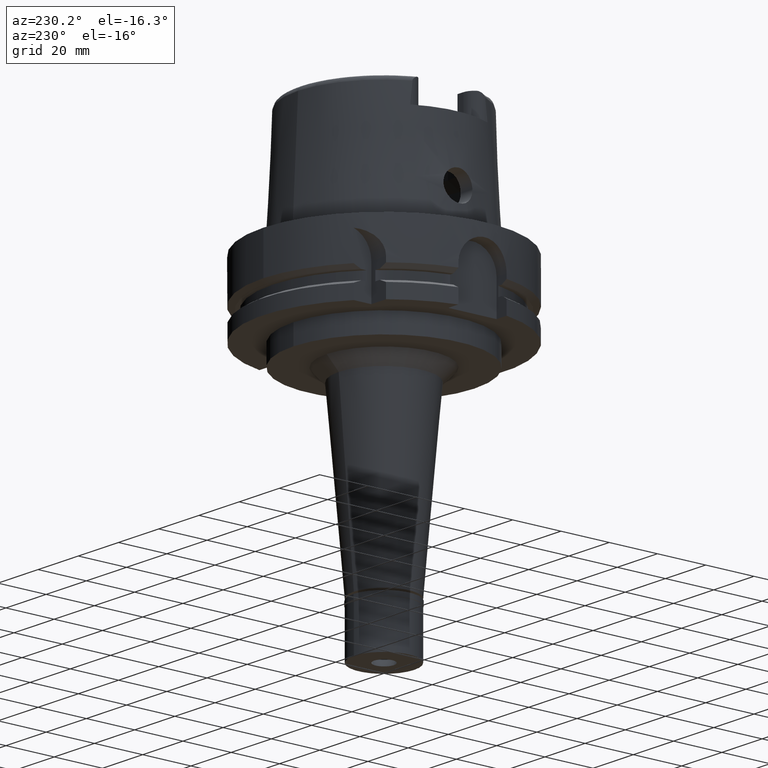
[diagram: clean part render]
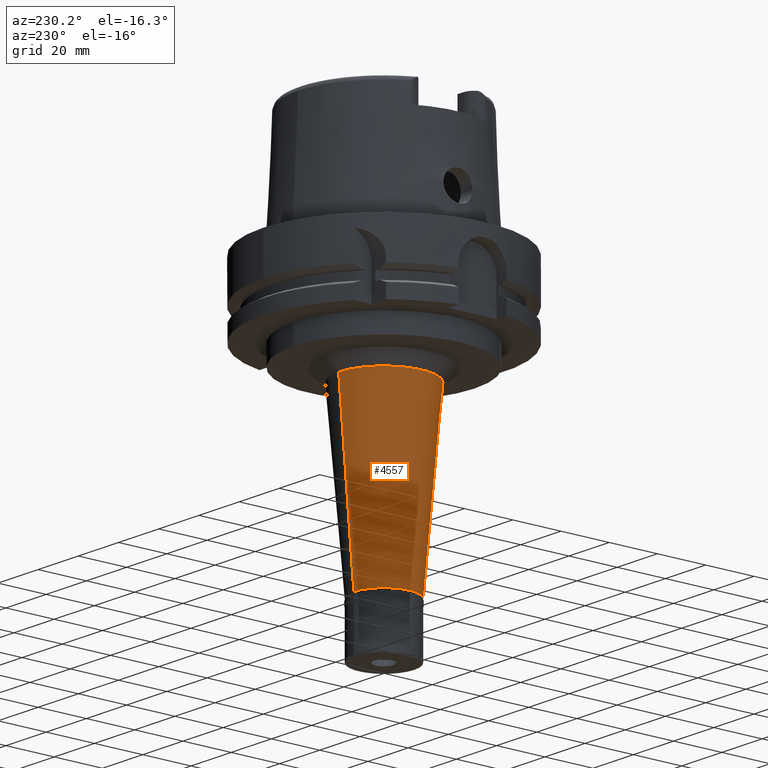
[diagram: same view with one face highlighted and labeled with its STEP entity id]
A machine part, auxiliary view. The second image highlights one B-rep face of the part: STEP entity #4557.
In plain terms, the highlighted conical surface has half-angle 5 deg.
Its self-contained STEP definition (entity closure, byte-faithful):
#100 = DIRECTION ( 'NONE',  ( 0.0000000000000000000, 1.000000000000000000, 0.0000000000000000000 ) ) ;
#510 = CIRCLE ( 'NONE', #2144, 12.50000000000000000 ) ;
#527 = EDGE_LOOP ( 'NONE', ( #4824, #5333, #1829, #4542 ) ) ;
#548 = CARTESIAN_POINT ( 'NONE',  ( 0.0000000000000000000, 0.0000000000000000000, -77.85000000000000853 ) ) ;
#601 = DIRECTION ( 'NONE',  ( 0.0000000000000000000, 1.000000000000000000, 0.0000000000000000000 ) ) ;
#642 = LINE ( 'NONE', #3302, #3544 ) ;
#975 = FACE_OUTER_BOUND ( 'NONE', #527, .T. ) ;
#1115 = CARTESIAN_POINT ( 'NONE',  ( 0.0000000000000000000, 18.77293717481000002, -42.00000000000000000 ) ) ;
#1344 = CARTESIAN_POINT ( 'NONE',  ( 0.0000000000000000000, 0.0000000000000000000, -113.6999999999999886 ) ) ;
#1625 = CARTESIAN_POINT ( 'NONE',  ( 0.0000000000000000000, 12.50000000000000000, -113.6999999999999886 ) ) ;
#1670 = CARTESIAN_POINT ( 'NONE',  ( 0.0000000000000000000, -12.50000000000000000, -113.6999999999999886 ) ) ;
#1829 = ORIENTED_EDGE ( 'NONE', *, *, #2475, .T. ) ;
#1961 = CARTESIAN_POINT ( 'NONE',  ( 0.0000000000000000000, 0.0000000000000000000, -42.00000000000000000 ) ) ;
#1998 = LINE ( 'NONE', #1115, #2383 ) ;
#2116 = VERTEX_POINT ( 'NONE', #4584 ) ;
#2144 = AXIS2_PLACEMENT_3D ( 'NONE', #1344, #2251, #100 ) ;
#2251 = DIRECTION ( 'NONE',  ( 0.0000000000000000000, 0.0000000000000000000, 1.000000000000000000 ) ) ;
#2306 = EDGE_CURVE ( 'NONE', #4291, #5020, #510, .T. ) ;
#2383 = VECTOR ( 'NONE', #3211, 1000.000000000000227 ) ;
#2475 = EDGE_CURVE ( 'NONE', #2116, #2515, #5125, .T. ) ;
#2515 = VERTEX_POINT ( 'NONE', #3199 ) ;
#3199 = CARTESIAN_POINT ( 'NONE',  ( 0.0000000000000000000, 18.77293717481000002, -42.00000000000000000 ) ) ;
#3211 = DIRECTION ( 'NONE',  ( 0.0000000000000000000, -0.08715574274768382590, -0.9961946980917432137 ) ) ;
#3302 = CARTESIAN_POINT ( 'NONE',  ( 0.0000000000000000000, -18.77293717481000002, -42.00000000000000000 ) ) ;
#3479 = EDGE_CURVE ( 'NONE', #2116, #5020, #642, .T. ) ;
#3544 = VECTOR ( 'NONE', #5062, 1000.000000000000227 ) ;
#3649 = DIRECTION ( 'NONE',  ( 0.0000000000000000000, 0.0000000000000000000, -1.000000000000000000 ) ) ;
#3912 = AXIS2_PLACEMENT_3D ( 'NONE', #548, #5304, #601 ) ;
#4291 = VERTEX_POINT ( 'NONE', #1625 ) ;
#4307 = AXIS2_PLACEMENT_3D ( 'NONE', #1961, #3649, #5357 ) ;
#4374 = CONICAL_SURFACE ( 'NONE', #3912, 15.63646858740000134, 0.08726646259969973729 ) ;
#4542 = ORIENTED_EDGE ( 'NONE', *, *, #5322, .T. ) ;
#4557 = ADVANCED_FACE ( 'NONE', ( #975 ), #4374, .T. ) ;
#4584 = CARTESIAN_POINT ( 'NONE',  ( 0.0000000000000000000, -18.77293717481000002, -42.00000000000000000 ) ) ;
#4824 = ORIENTED_EDGE ( 'NONE', *, *, #2306, .T. ) ;
#5020 = VERTEX_POINT ( 'NONE', #1670 ) ;
#5062 = DIRECTION ( 'NONE',  ( 0.0000000000000000000, 0.08715574274768382590, -0.9961946980917432137 ) ) ;
#5125 = CIRCLE ( 'NONE', #4307, 18.77293717481000002 ) ;
#5304 = DIRECTION ( 'NONE',  ( 0.0000000000000000000, 0.0000000000000000000, 1.000000000000000000 ) ) ;
#5322 = EDGE_CURVE ( 'NONE', #2515, #4291, #1998, .T. ) ;
#5333 = ORIENTED_EDGE ( 'NONE', *, *, #3479, .F. ) ;
#5357 = DIRECTION ( 'NONE',  ( 0.0000000000000000000, -1.000000000000000000, 0.0000000000000000000 ) ) ;